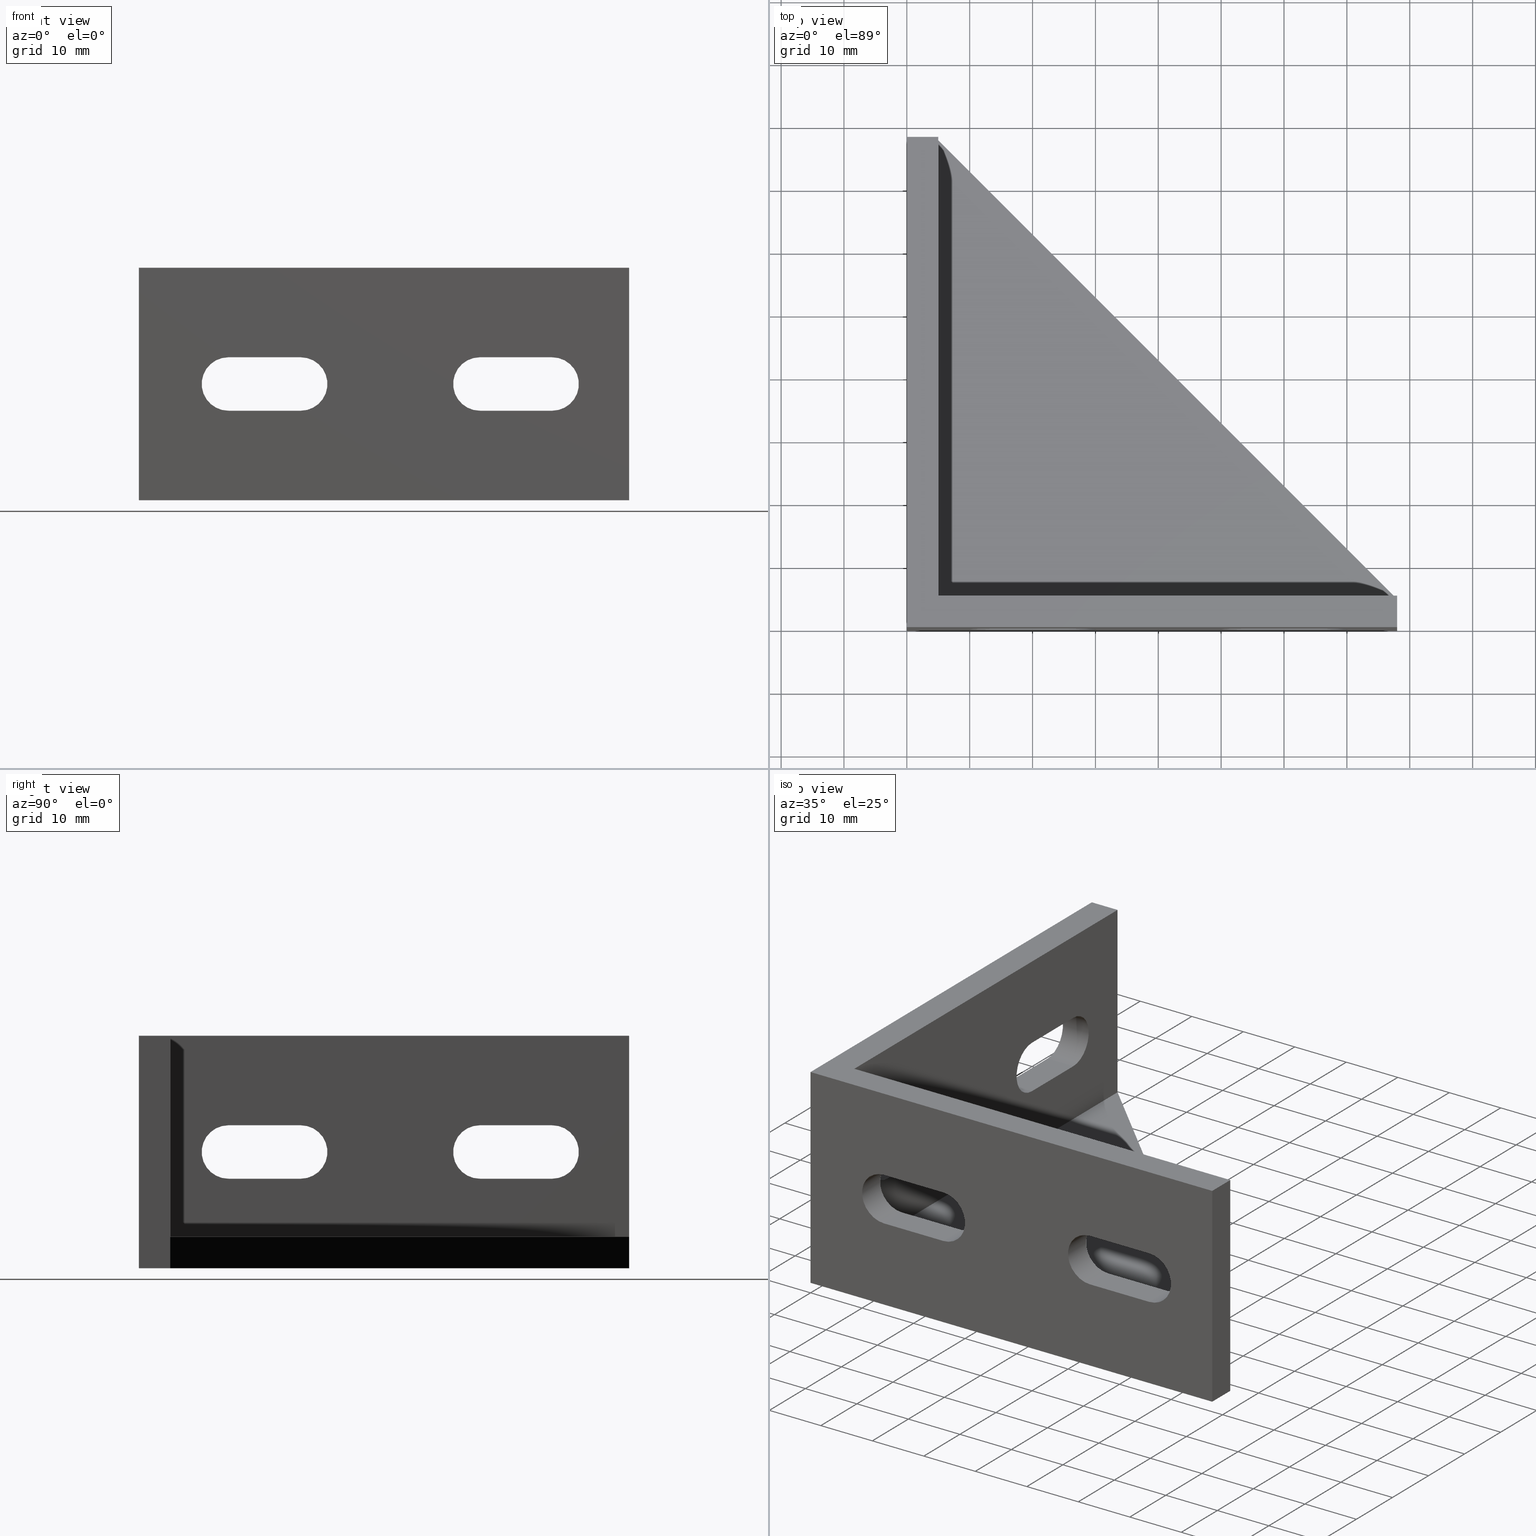
[diagram: canonical four-view strip — front | top / right | iso, engineering-drawing reading convention]
A machine part, canonical four-view strip (front | top / right | iso — engineering-drawing reading convention). The complete STEP part file that produces these views, byte-faithful:
ISO-10303-21;
HEADER;
/* Generated by software containing ST-Developer
 * from STEP Tools, Inc. (www.steptools.com) 
 */

FILE_DESCRIPTION(
/* description */ ('SQUADRETTA 37x80 '),
/* implementation_level */ '2;1');

FILE_NAME(
/* name */ 
'Q:\\Catalogo\\2_Accessori Dierre\\Per Download Web e catalogo cartace
o\\CATALOGO ELEMENTI ASSEMBLAGGIO\\PAGINA 35\\DSQAL0000059.stp',
/* time_stamp */ '2019-01-09T12:02:24+01:00',
/* author */ ('fzagni'),
/* organization */ (''),
/* preprocessor_version */ 'ST-DEVELOPER v17.2',
/* originating_system */ 'Autodesk Inventor 2019',
/* authorisation */ '');

FILE_SCHEMA (('AUTOMOTIVE_DESIGN { 1 0 10303 214 3 1 1 }'));
ENDSEC;

DATA;
#10=MECHANICAL_DESIGN_GEOMETRIC_PRESENTATION_REPRESENTATION('',(#13),#863);
#11=SHAPE_REPRESENTATION_RELATIONSHIP('SRR','None',#870,#12);
#12=ADVANCED_BREP_SHAPE_REPRESENTATION('',(#14),#862);
#13=STYLED_ITEM('',(#879),#14);
#14=MANIFOLD_SOLID_BREP('Solido1',#515);
#15=FACE_BOUND('',#86,.T.);
#16=FACE_BOUND('',#87,.T.);
#17=FACE_BOUND('',#92,.T.);
#18=FACE_BOUND('',#93,.T.);
#19=FACE_BOUND('',#95,.T.);
#20=FACE_BOUND('',#96,.T.);
#21=FACE_BOUND('',#99,.T.);
#22=FACE_BOUND('',#100,.T.);
#23=PLANE('',#538);
#24=PLANE('',#542);
#25=PLANE('',#546);
#26=PLANE('',#550);
#27=PLANE('',#554);
#28=PLANE('',#558);
#29=PLANE('',#562);
#30=PLANE('',#566);
#31=PLANE('',#567);
#32=PLANE('',#568);
#33=PLANE('',#569);
#34=PLANE('',#570);
#35=PLANE('',#571);
#36=PLANE('',#572);
#37=PLANE('',#573);
#38=PLANE('',#574);
#39=PLANE('',#575);
#40=PLANE('',#576);
#41=FACE_OUTER_BOUND('',#67,.T.);
#42=FACE_OUTER_BOUND('',#68,.T.);
#43=FACE_OUTER_BOUND('',#69,.T.);
#44=FACE_OUTER_BOUND('',#70,.T.);
#45=FACE_OUTER_BOUND('',#71,.T.);
#46=FACE_OUTER_BOUND('',#72,.T.);
#47=FACE_OUTER_BOUND('',#73,.T.);
#48=FACE_OUTER_BOUND('',#74,.T.);
#49=FACE_OUTER_BOUND('',#75,.T.);
#50=FACE_OUTER_BOUND('',#76,.T.);
#51=FACE_OUTER_BOUND('',#77,.T.);
#52=FACE_OUTER_BOUND('',#78,.T.);
#53=FACE_OUTER_BOUND('',#79,.T.);
#54=FACE_OUTER_BOUND('',#80,.T.);
#55=FACE_OUTER_BOUND('',#81,.T.);
#56=FACE_OUTER_BOUND('',#82,.T.);
#57=FACE_OUTER_BOUND('',#83,.T.);
#58=FACE_OUTER_BOUND('',#84,.T.);
#59=FACE_OUTER_BOUND('',#85,.T.);
#60=FACE_OUTER_BOUND('',#88,.T.);
#61=FACE_OUTER_BOUND('',#89,.T.);
#62=FACE_OUTER_BOUND('',#90,.T.);
#63=FACE_OUTER_BOUND('',#91,.T.);
#64=FACE_OUTER_BOUND('',#94,.T.);
#65=FACE_OUTER_BOUND('',#97,.T.);
#66=FACE_OUTER_BOUND('',#98,.T.);
#67=EDGE_LOOP('',(#341,#342,#343,#344));
#68=EDGE_LOOP('',(#345,#346,#347,#348));
#69=EDGE_LOOP('',(#349,#350,#351,#352));
#70=EDGE_LOOP('',(#353,#354,#355,#356));
#71=EDGE_LOOP('',(#357,#358,#359,#360));
#72=EDGE_LOOP('',(#361,#362,#363,#364));
#73=EDGE_LOOP('',(#365,#366,#367,#368));
#74=EDGE_LOOP('',(#369,#370,#371,#372));
#75=EDGE_LOOP('',(#373,#374,#375,#376));
#76=EDGE_LOOP('',(#377,#378,#379,#380));
#77=EDGE_LOOP('',(#381,#382,#383,#384));
#78=EDGE_LOOP('',(#385,#386,#387,#388));
#79=EDGE_LOOP('',(#389,#390,#391,#392));
#80=EDGE_LOOP('',(#393,#394,#395,#396));
#81=EDGE_LOOP('',(#397,#398,#399,#400));
#82=EDGE_LOOP('',(#401,#402,#403,#404));
#83=EDGE_LOOP('',(#405,#406,#407,#408));
#84=EDGE_LOOP('',(#409,#410,#411));
#85=EDGE_LOOP('',(#412,#413,#414,#415));
#86=EDGE_LOOP('',(#416,#417,#418,#419));
#87=EDGE_LOOP('',(#420,#421,#422,#423));
#88=EDGE_LOOP('',(#424,#425,#426,#427,#428));
#89=EDGE_LOOP('',(#429,#430,#431,#432,#433));
#90=EDGE_LOOP('',(#434,#435,#436,#437,#438,#439));
#91=EDGE_LOOP('',(#440,#441,#442,#443));
#92=EDGE_LOOP('',(#444,#445,#446,#447));
#93=EDGE_LOOP('',(#448,#449,#450,#451));
#94=EDGE_LOOP('',(#452,#453,#454,#455));
#95=EDGE_LOOP('',(#456,#457,#458,#459));
#96=EDGE_LOOP('',(#460,#461,#462,#463));
#97=EDGE_LOOP('',(#464,#465,#466,#467,#468));
#98=EDGE_LOOP('',(#469,#470,#471,#472));
#99=EDGE_LOOP('',(#473,#474,#475,#476));
#100=EDGE_LOOP('',(#477,#478,#479,#480));
#101=LINE('',#723,#155);
#102=LINE('',#726,#156);
#103=LINE('',#729,#157);
#104=LINE('',#731,#158);
#105=LINE('',#732,#159);
#106=LINE('',#738,#160);
#107=LINE('',#740,#161);
#108=LINE('',#741,#162);
#109=LINE('',#747,#163);
#110=LINE('',#750,#164);
#111=LINE('',#753,#165);
#112=LINE('',#755,#166);
#113=LINE('',#756,#167);
#114=LINE('',#762,#168);
#115=LINE('',#764,#169);
#116=LINE('',#765,#170);
#117=LINE('',#771,#171);
#118=LINE('',#774,#172);
#119=LINE('',#777,#173);
#120=LINE('',#779,#174);
#121=LINE('',#780,#175);
#122=LINE('',#786,#176);
#123=LINE('',#788,#177);
#124=LINE('',#789,#178);
#125=LINE('',#795,#179);
#126=LINE('',#798,#180);
#127=LINE('',#801,#181);
#128=LINE('',#803,#182);
#129=LINE('',#804,#183);
#130=LINE('',#810,#184);
#131=LINE('',#812,#185);
#132=LINE('',#813,#186);
#133=LINE('',#817,#187);
#134=LINE('',#819,#188);
#135=LINE('',#821,#189);
#136=LINE('',#822,#190);
#137=LINE('',#825,#191);
#138=LINE('',#826,#192);
#139=LINE('',#829,#193);
#140=LINE('',#831,#194);
#141=LINE('',#832,#195);
#142=LINE('',#836,#196);
#143=LINE('',#837,#197);
#144=LINE('',#839,#198);
#145=LINE('',#840,#199);
#146=LINE('',#843,#200);
#147=LINE('',#844,#201);
#148=LINE('',#847,#202);
#149=LINE('',#849,#203);
#150=LINE('',#851,#204);
#151=LINE('',#852,#205);
#152=LINE('',#854,#206);
#153=LINE('',#856,#207);
#154=LINE('',#858,#208);
#155=VECTOR('',#583,10.);
#156=VECTOR('',#586,10.);
#157=VECTOR('',#589,10.);
#158=VECTOR('',#590,10.);
#159=VECTOR('',#591,10.);
#160=VECTOR('',#598,10.);
#161=VECTOR('',#601,10.);
#162=VECTOR('',#602,10.);
#163=VECTOR('',#607,10.);
#164=VECTOR('',#610,10.);
#165=VECTOR('',#613,10.);
#166=VECTOR('',#614,10.);
#167=VECTOR('',#615,10.);
#168=VECTOR('',#622,10.);
#169=VECTOR('',#625,10.);
#170=VECTOR('',#626,10.);
#171=VECTOR('',#631,10.);
#172=VECTOR('',#634,10.);
#173=VECTOR('',#637,10.);
#174=VECTOR('',#638,10.);
#175=VECTOR('',#639,10.);
#176=VECTOR('',#646,10.);
#177=VECTOR('',#649,10.);
#178=VECTOR('',#650,10.);
#179=VECTOR('',#655,10.);
#180=VECTOR('',#658,10.);
#181=VECTOR('',#661,10.);
#182=VECTOR('',#662,10.);
#183=VECTOR('',#663,10.);
#184=VECTOR('',#670,10.);
#185=VECTOR('',#673,10.);
#186=VECTOR('',#674,10.);
#187=VECTOR('',#677,10.);
#188=VECTOR('',#678,10.);
#189=VECTOR('',#679,10.);
#190=VECTOR('',#680,10.);
#191=VECTOR('',#683,10.);
#192=VECTOR('',#684,10.);
#193=VECTOR('',#687,10.);
#194=VECTOR('',#688,10.);
#195=VECTOR('',#689,10.);
#196=VECTOR('',#692,10.);
#197=VECTOR('',#693,10.);
#198=VECTOR('',#694,10.);
#199=VECTOR('',#695,10.);
#200=VECTOR('',#698,10.);
#201=VECTOR('',#699,10.);
#202=VECTOR('',#702,10.);
#203=VECTOR('',#703,10.);
#204=VECTOR('',#704,10.);
#205=VECTOR('',#705,10.);
#206=VECTOR('',#708,10.);
#207=VECTOR('',#711,10.);
#208=VECTOR('',#714,10.);
#209=CIRCLE('',#536,4.25);
#210=CIRCLE('',#537,4.25);
#211=CIRCLE('',#540,4.25);
#212=CIRCLE('',#541,4.25);
#213=CIRCLE('',#544,4.25);
#214=CIRCLE('',#545,4.25);
#215=CIRCLE('',#548,4.25);
#216=CIRCLE('',#549,4.25);
#217=CIRCLE('',#552,4.25);
#218=CIRCLE('',#553,4.25);
#219=CIRCLE('',#556,4.25);
#220=CIRCLE('',#557,4.25);
#221=CIRCLE('',#560,4.25);
#222=CIRCLE('',#561,4.25);
#223=CIRCLE('',#564,4.25);
#224=CIRCLE('',#565,4.25);
#225=VERTEX_POINT('',#719);
#226=VERTEX_POINT('',#720);
#227=VERTEX_POINT('',#722);
#228=VERTEX_POINT('',#724);
#229=VERTEX_POINT('',#728);
#230=VERTEX_POINT('',#730);
#231=VERTEX_POINT('',#734);
#232=VERTEX_POINT('',#736);
#233=VERTEX_POINT('',#743);
#234=VERTEX_POINT('',#744);
#235=VERTEX_POINT('',#746);
#236=VERTEX_POINT('',#748);
#237=VERTEX_POINT('',#752);
#238=VERTEX_POINT('',#754);
#239=VERTEX_POINT('',#758);
#240=VERTEX_POINT('',#760);
#241=VERTEX_POINT('',#767);
#242=VERTEX_POINT('',#768);
#243=VERTEX_POINT('',#770);
#244=VERTEX_POINT('',#772);
#245=VERTEX_POINT('',#776);
#246=VERTEX_POINT('',#778);
#247=VERTEX_POINT('',#782);
#248=VERTEX_POINT('',#784);
#249=VERTEX_POINT('',#791);
#250=VERTEX_POINT('',#792);
#251=VERTEX_POINT('',#794);
#252=VERTEX_POINT('',#796);
#253=VERTEX_POINT('',#800);
#254=VERTEX_POINT('',#802);
#255=VERTEX_POINT('',#806);
#256=VERTEX_POINT('',#808);
#257=VERTEX_POINT('',#815);
#258=VERTEX_POINT('',#816);
#259=VERTEX_POINT('',#818);
#260=VERTEX_POINT('',#820);
#261=VERTEX_POINT('',#824);
#262=VERTEX_POINT('',#828);
#263=VERTEX_POINT('',#830);
#264=VERTEX_POINT('',#834);
#265=VERTEX_POINT('',#835);
#266=VERTEX_POINT('',#838);
#267=VERTEX_POINT('',#842);
#268=VERTEX_POINT('',#846);
#269=VERTEX_POINT('',#848);
#270=VERTEX_POINT('',#850);
#271=EDGE_CURVE('',#225,#226,#209,.T.);
#272=EDGE_CURVE('',#227,#225,#101,.T.);
#273=EDGE_CURVE('',#228,#227,#210,.T.);
#274=EDGE_CURVE('',#228,#226,#102,.T.);
#275=EDGE_CURVE('',#226,#229,#103,.T.);
#276=EDGE_CURVE('',#230,#228,#104,.T.);
#277=EDGE_CURVE('',#230,#229,#105,.T.);
#278=EDGE_CURVE('',#229,#231,#211,.T.);
#279=EDGE_CURVE('',#232,#230,#212,.T.);
#280=EDGE_CURVE('',#232,#231,#106,.T.);
#281=EDGE_CURVE('',#231,#225,#107,.T.);
#282=EDGE_CURVE('',#227,#232,#108,.T.);
#283=EDGE_CURVE('',#233,#234,#213,.T.);
#284=EDGE_CURVE('',#235,#233,#109,.T.);
#285=EDGE_CURVE('',#236,#235,#214,.T.);
#286=EDGE_CURVE('',#236,#234,#110,.T.);
#287=EDGE_CURVE('',#234,#237,#111,.T.);
#288=EDGE_CURVE('',#238,#236,#112,.T.);
#289=EDGE_CURVE('',#238,#237,#113,.T.);
#290=EDGE_CURVE('',#237,#239,#215,.T.);
#291=EDGE_CURVE('',#240,#238,#216,.T.);
#292=EDGE_CURVE('',#240,#239,#114,.T.);
#293=EDGE_CURVE('',#239,#233,#115,.T.);
#294=EDGE_CURVE('',#235,#240,#116,.T.);
#295=EDGE_CURVE('',#241,#242,#217,.T.);
#296=EDGE_CURVE('',#243,#241,#117,.T.);
#297=EDGE_CURVE('',#244,#243,#218,.T.);
#298=EDGE_CURVE('',#244,#242,#118,.T.);
#299=EDGE_CURVE('',#242,#245,#119,.T.);
#300=EDGE_CURVE('',#246,#244,#120,.T.);
#301=EDGE_CURVE('',#246,#245,#121,.T.);
#302=EDGE_CURVE('',#245,#247,#219,.T.);
#303=EDGE_CURVE('',#248,#246,#220,.T.);
#304=EDGE_CURVE('',#248,#247,#122,.T.);
#305=EDGE_CURVE('',#247,#241,#123,.T.);
#306=EDGE_CURVE('',#243,#248,#124,.T.);
#307=EDGE_CURVE('',#249,#250,#221,.T.);
#308=EDGE_CURVE('',#251,#249,#125,.T.);
#309=EDGE_CURVE('',#252,#251,#222,.T.);
#310=EDGE_CURVE('',#252,#250,#126,.T.);
#311=EDGE_CURVE('',#250,#253,#127,.T.);
#312=EDGE_CURVE('',#254,#252,#128,.T.);
#313=EDGE_CURVE('',#254,#253,#129,.T.);
#314=EDGE_CURVE('',#253,#255,#223,.T.);
#315=EDGE_CURVE('',#256,#254,#224,.T.);
#316=EDGE_CURVE('',#256,#255,#130,.T.);
#317=EDGE_CURVE('',#255,#249,#131,.T.);
#318=EDGE_CURVE('',#251,#256,#132,.T.);
#319=EDGE_CURVE('',#257,#258,#133,.T.);
#320=EDGE_CURVE('',#258,#259,#134,.T.);
#321=EDGE_CURVE('',#260,#259,#135,.T.);
#322=EDGE_CURVE('',#257,#260,#136,.T.);
#323=EDGE_CURVE('',#260,#261,#137,.T.);
#324=EDGE_CURVE('',#261,#259,#138,.T.);
#325=EDGE_CURVE('',#259,#262,#139,.T.);
#326=EDGE_CURVE('',#263,#262,#140,.T.);
#327=EDGE_CURVE('',#261,#263,#141,.T.);
#328=EDGE_CURVE('',#264,#265,#142,.T.);
#329=EDGE_CURVE('',#265,#258,#143,.T.);
#330=EDGE_CURVE('',#257,#266,#144,.T.);
#331=EDGE_CURVE('',#266,#264,#145,.T.);
#332=EDGE_CURVE('',#265,#267,#146,.T.);
#333=EDGE_CURVE('',#262,#267,#147,.T.);
#334=EDGE_CURVE('',#267,#268,#148,.T.);
#335=EDGE_CURVE('',#268,#269,#149,.T.);
#336=EDGE_CURVE('',#269,#270,#150,.T.);
#337=EDGE_CURVE('',#270,#263,#151,.T.);
#338=EDGE_CURVE('',#268,#264,#152,.T.);
#339=EDGE_CURVE('',#260,#270,#153,.T.);
#340=EDGE_CURVE('',#266,#269,#154,.T.);
#341=ORIENTED_EDGE('',*,*,#271,.F.);
#342=ORIENTED_EDGE('',*,*,#272,.F.);
#343=ORIENTED_EDGE('',*,*,#273,.F.);
#344=ORIENTED_EDGE('',*,*,#274,.T.);
#345=ORIENTED_EDGE('',*,*,#275,.F.);
#346=ORIENTED_EDGE('',*,*,#274,.F.);
#347=ORIENTED_EDGE('',*,*,#276,.F.);
#348=ORIENTED_EDGE('',*,*,#277,.T.);
#349=ORIENTED_EDGE('',*,*,#278,.F.);
#350=ORIENTED_EDGE('',*,*,#277,.F.);
#351=ORIENTED_EDGE('',*,*,#279,.F.);
#352=ORIENTED_EDGE('',*,*,#280,.T.);
#353=ORIENTED_EDGE('',*,*,#281,.F.);
#354=ORIENTED_EDGE('',*,*,#280,.F.);
#355=ORIENTED_EDGE('',*,*,#282,.F.);
#356=ORIENTED_EDGE('',*,*,#272,.T.);
#357=ORIENTED_EDGE('',*,*,#283,.F.);
#358=ORIENTED_EDGE('',*,*,#284,.F.);
#359=ORIENTED_EDGE('',*,*,#285,.F.);
#360=ORIENTED_EDGE('',*,*,#286,.T.);
#361=ORIENTED_EDGE('',*,*,#287,.F.);
#362=ORIENTED_EDGE('',*,*,#286,.F.);
#363=ORIENTED_EDGE('',*,*,#288,.F.);
#364=ORIENTED_EDGE('',*,*,#289,.T.);
#365=ORIENTED_EDGE('',*,*,#290,.F.);
#366=ORIENTED_EDGE('',*,*,#289,.F.);
#367=ORIENTED_EDGE('',*,*,#291,.F.);
#368=ORIENTED_EDGE('',*,*,#292,.T.);
#369=ORIENTED_EDGE('',*,*,#293,.F.);
#370=ORIENTED_EDGE('',*,*,#292,.F.);
#371=ORIENTED_EDGE('',*,*,#294,.F.);
#372=ORIENTED_EDGE('',*,*,#284,.T.);
#373=ORIENTED_EDGE('',*,*,#295,.F.);
#374=ORIENTED_EDGE('',*,*,#296,.F.);
#375=ORIENTED_EDGE('',*,*,#297,.F.);
#376=ORIENTED_EDGE('',*,*,#298,.T.);
#377=ORIENTED_EDGE('',*,*,#299,.F.);
#378=ORIENTED_EDGE('',*,*,#298,.F.);
#379=ORIENTED_EDGE('',*,*,#300,.F.);
#380=ORIENTED_EDGE('',*,*,#301,.T.);
#381=ORIENTED_EDGE('',*,*,#302,.F.);
#382=ORIENTED_EDGE('',*,*,#301,.F.);
#383=ORIENTED_EDGE('',*,*,#303,.F.);
#384=ORIENTED_EDGE('',*,*,#304,.T.);
#385=ORIENTED_EDGE('',*,*,#305,.F.);
#386=ORIENTED_EDGE('',*,*,#304,.F.);
#387=ORIENTED_EDGE('',*,*,#306,.F.);
#388=ORIENTED_EDGE('',*,*,#296,.T.);
#389=ORIENTED_EDGE('',*,*,#307,.F.);
#390=ORIENTED_EDGE('',*,*,#308,.F.);
#391=ORIENTED_EDGE('',*,*,#309,.F.);
#392=ORIENTED_EDGE('',*,*,#310,.T.);
#393=ORIENTED_EDGE('',*,*,#311,.F.);
#394=ORIENTED_EDGE('',*,*,#310,.F.);
#395=ORIENTED_EDGE('',*,*,#312,.F.);
#396=ORIENTED_EDGE('',*,*,#313,.T.);
#397=ORIENTED_EDGE('',*,*,#314,.F.);
#398=ORIENTED_EDGE('',*,*,#313,.F.);
#399=ORIENTED_EDGE('',*,*,#315,.F.);
#400=ORIENTED_EDGE('',*,*,#316,.T.);
#401=ORIENTED_EDGE('',*,*,#317,.F.);
#402=ORIENTED_EDGE('',*,*,#316,.F.);
#403=ORIENTED_EDGE('',*,*,#318,.F.);
#404=ORIENTED_EDGE('',*,*,#308,.T.);
#405=ORIENTED_EDGE('',*,*,#319,.T.);
#406=ORIENTED_EDGE('',*,*,#320,.T.);
#407=ORIENTED_EDGE('',*,*,#321,.F.);
#408=ORIENTED_EDGE('',*,*,#322,.F.);
#409=ORIENTED_EDGE('',*,*,#323,.F.);
#410=ORIENTED_EDGE('',*,*,#321,.T.);
#411=ORIENTED_EDGE('',*,*,#324,.F.);
#412=ORIENTED_EDGE('',*,*,#324,.T.);
#413=ORIENTED_EDGE('',*,*,#325,.T.);
#414=ORIENTED_EDGE('',*,*,#326,.F.);
#415=ORIENTED_EDGE('',*,*,#327,.F.);
#416=ORIENTED_EDGE('',*,*,#302,.T.);
#417=ORIENTED_EDGE('',*,*,#305,.T.);
#418=ORIENTED_EDGE('',*,*,#295,.T.);
#419=ORIENTED_EDGE('',*,*,#299,.T.);
#420=ORIENTED_EDGE('',*,*,#314,.T.);
#421=ORIENTED_EDGE('',*,*,#317,.T.);
#422=ORIENTED_EDGE('',*,*,#307,.T.);
#423=ORIENTED_EDGE('',*,*,#311,.T.);
#424=ORIENTED_EDGE('',*,*,#328,.T.);
#425=ORIENTED_EDGE('',*,*,#329,.T.);
#426=ORIENTED_EDGE('',*,*,#319,.F.);
#427=ORIENTED_EDGE('',*,*,#330,.T.);
#428=ORIENTED_EDGE('',*,*,#331,.T.);
#429=ORIENTED_EDGE('',*,*,#332,.T.);
#430=ORIENTED_EDGE('',*,*,#333,.F.);
#431=ORIENTED_EDGE('',*,*,#325,.F.);
#432=ORIENTED_EDGE('',*,*,#320,.F.);
#433=ORIENTED_EDGE('',*,*,#329,.F.);
#434=ORIENTED_EDGE('',*,*,#326,.T.);
#435=ORIENTED_EDGE('',*,*,#333,.T.);
#436=ORIENTED_EDGE('',*,*,#334,.T.);
#437=ORIENTED_EDGE('',*,*,#335,.T.);
#438=ORIENTED_EDGE('',*,*,#336,.T.);
#439=ORIENTED_EDGE('',*,*,#337,.T.);
#440=ORIENTED_EDGE('',*,*,#338,.F.);
#441=ORIENTED_EDGE('',*,*,#334,.F.);
#442=ORIENTED_EDGE('',*,*,#332,.F.);
#443=ORIENTED_EDGE('',*,*,#328,.F.);
#444=ORIENTED_EDGE('',*,*,#303,.T.);
#445=ORIENTED_EDGE('',*,*,#300,.T.);
#446=ORIENTED_EDGE('',*,*,#297,.T.);
#447=ORIENTED_EDGE('',*,*,#306,.T.);
#448=ORIENTED_EDGE('',*,*,#315,.T.);
#449=ORIENTED_EDGE('',*,*,#312,.T.);
#450=ORIENTED_EDGE('',*,*,#309,.T.);
#451=ORIENTED_EDGE('',*,*,#318,.T.);
#452=ORIENTED_EDGE('',*,*,#323,.T.);
#453=ORIENTED_EDGE('',*,*,#327,.T.);
#454=ORIENTED_EDGE('',*,*,#337,.F.);
#455=ORIENTED_EDGE('',*,*,#339,.F.);
#456=ORIENTED_EDGE('',*,*,#278,.T.);
#457=ORIENTED_EDGE('',*,*,#281,.T.);
#458=ORIENTED_EDGE('',*,*,#271,.T.);
#459=ORIENTED_EDGE('',*,*,#275,.T.);
#460=ORIENTED_EDGE('',*,*,#290,.T.);
#461=ORIENTED_EDGE('',*,*,#293,.T.);
#462=ORIENTED_EDGE('',*,*,#283,.T.);
#463=ORIENTED_EDGE('',*,*,#287,.T.);
#464=ORIENTED_EDGE('',*,*,#322,.T.);
#465=ORIENTED_EDGE('',*,*,#339,.T.);
#466=ORIENTED_EDGE('',*,*,#336,.F.);
#467=ORIENTED_EDGE('',*,*,#340,.F.);
#468=ORIENTED_EDGE('',*,*,#330,.F.);
#469=ORIENTED_EDGE('',*,*,#335,.F.);
#470=ORIENTED_EDGE('',*,*,#338,.T.);
#471=ORIENTED_EDGE('',*,*,#331,.F.);
#472=ORIENTED_EDGE('',*,*,#340,.T.);
#473=ORIENTED_EDGE('',*,*,#279,.T.);
#474=ORIENTED_EDGE('',*,*,#276,.T.);
#475=ORIENTED_EDGE('',*,*,#273,.T.);
#476=ORIENTED_EDGE('',*,*,#282,.T.);
#477=ORIENTED_EDGE('',*,*,#291,.T.);
#478=ORIENTED_EDGE('',*,*,#288,.T.);
#479=ORIENTED_EDGE('',*,*,#285,.T.);
#480=ORIENTED_EDGE('',*,*,#294,.T.);
#481=CYLINDRICAL_SURFACE('',#535,4.25);
#482=CYLINDRICAL_SURFACE('',#539,4.25);
#483=CYLINDRICAL_SURFACE('',#543,4.25);
#484=CYLINDRICAL_SURFACE('',#547,4.25);
#485=CYLINDRICAL_SURFACE('',#551,4.25);
#486=CYLINDRICAL_SURFACE('',#555,4.25);
#487=CYLINDRICAL_SURFACE('',#559,4.25);
#488=CYLINDRICAL_SURFACE('',#563,4.25);
#489=ADVANCED_FACE('',(#41),#481,.F.);
#490=ADVANCED_FACE('',(#42),#23,.F.);
#491=ADVANCED_FACE('',(#43),#482,.F.);
#492=ADVANCED_FACE('',(#44),#24,.F.);
#493=ADVANCED_FACE('',(#45),#483,.F.);
#494=ADVANCED_FACE('',(#46),#25,.F.);
#495=ADVANCED_FACE('',(#47),#484,.F.);
#496=ADVANCED_FACE('',(#48),#26,.F.);
#497=ADVANCED_FACE('',(#49),#485,.F.);
#498=ADVANCED_FACE('',(#50),#27,.F.);
#499=ADVANCED_FACE('',(#51),#486,.F.);
#500=ADVANCED_FACE('',(#52),#28,.F.);
#501=ADVANCED_FACE('',(#53),#487,.F.);
#502=ADVANCED_FACE('',(#54),#29,.F.);
#503=ADVANCED_FACE('',(#55),#488,.F.);
#504=ADVANCED_FACE('',(#56),#30,.F.);
#505=ADVANCED_FACE('',(#57),#31,.T.);
#506=ADVANCED_FACE('',(#58),#32,.T.);
#507=ADVANCED_FACE('',(#59,#15,#16),#33,.T.);
#508=ADVANCED_FACE('',(#60),#34,.T.);
#509=ADVANCED_FACE('',(#61),#35,.T.);
#510=ADVANCED_FACE('',(#62),#36,.T.);
#511=ADVANCED_FACE('',(#63,#17,#18),#37,.T.);
#512=ADVANCED_FACE('',(#64,#19,#20),#38,.T.);
#513=ADVANCED_FACE('',(#65),#39,.T.);
#514=ADVANCED_FACE('',(#66,#21,#22),#40,.T.);
#515=CLOSED_SHELL('',(#489,#490,#491,#492,#493,#494,#495,#496,#497,#498,
#499,#500,#501,#502,#503,#504,#505,#506,#507,#508,#509,#510,#511,#512,#513,
#514));
#516=DERIVED_UNIT_ELEMENT(#518,1.);
#517=DERIVED_UNIT_ELEMENT(#865,3.);
#518=(
MASS_UNIT()
NAMED_UNIT(*)
SI_UNIT($,.GRAM.)
);
#519=DERIVED_UNIT((#516,#517));
#520=MEASURE_REPRESENTATION_ITEM('density measure',
POSITIVE_RATIO_MEASURE(2.67),#519);
#521=PROPERTY_DEFINITION_REPRESENTATION(#526,#523);
#522=PROPERTY_DEFINITION_REPRESENTATION(#527,#524);
#523=REPRESENTATION('material name',(#525),#862);
#524=REPRESENTATION('density',(#520),#862);
#525=DESCRIPTIVE_REPRESENTATION_ITEM('Alluminio pressofuso',
'Alluminio pressofuso');
#526=PROPERTY_DEFINITION('material property','material name',#872);
#527=PROPERTY_DEFINITION('material property','density of part',#872);
#528=DATE_TIME_ROLE('creation_date');
#529=APPLIED_DATE_AND_TIME_ASSIGNMENT(#530,#528,(#872));
#530=DATE_AND_TIME(#531,#532);
#531=CALENDAR_DATE(2017,8,9);
#532=LOCAL_TIME(13,15,55.,#533);
#533=COORDINATED_UNIVERSAL_TIME_OFFSET(0,0,.BEHIND.);
#534=AXIS2_PLACEMENT_3D('placement',#717,#577,#578);
#535=AXIS2_PLACEMENT_3D('',#718,#579,#580);
#536=AXIS2_PLACEMENT_3D('',#721,#581,#582);
#537=AXIS2_PLACEMENT_3D('',#725,#584,#585);
#538=AXIS2_PLACEMENT_3D('',#727,#587,#588);
#539=AXIS2_PLACEMENT_3D('',#733,#592,#593);
#540=AXIS2_PLACEMENT_3D('',#735,#594,#595);
#541=AXIS2_PLACEMENT_3D('',#737,#596,#597);
#542=AXIS2_PLACEMENT_3D('',#739,#599,#600);
#543=AXIS2_PLACEMENT_3D('',#742,#603,#604);
#544=AXIS2_PLACEMENT_3D('',#745,#605,#606);
#545=AXIS2_PLACEMENT_3D('',#749,#608,#609);
#546=AXIS2_PLACEMENT_3D('',#751,#611,#612);
#547=AXIS2_PLACEMENT_3D('',#757,#616,#617);
#548=AXIS2_PLACEMENT_3D('',#759,#618,#619);
#549=AXIS2_PLACEMENT_3D('',#761,#620,#621);
#550=AXIS2_PLACEMENT_3D('',#763,#623,#624);
#551=AXIS2_PLACEMENT_3D('',#766,#627,#628);
#552=AXIS2_PLACEMENT_3D('',#769,#629,#630);
#553=AXIS2_PLACEMENT_3D('',#773,#632,#633);
#554=AXIS2_PLACEMENT_3D('',#775,#635,#636);
#555=AXIS2_PLACEMENT_3D('',#781,#640,#641);
#556=AXIS2_PLACEMENT_3D('',#783,#642,#643);
#557=AXIS2_PLACEMENT_3D('',#785,#644,#645);
#558=AXIS2_PLACEMENT_3D('',#787,#647,#648);
#559=AXIS2_PLACEMENT_3D('',#790,#651,#652);
#560=AXIS2_PLACEMENT_3D('',#793,#653,#654);
#561=AXIS2_PLACEMENT_3D('',#797,#656,#657);
#562=AXIS2_PLACEMENT_3D('',#799,#659,#660);
#563=AXIS2_PLACEMENT_3D('',#805,#664,#665);
#564=AXIS2_PLACEMENT_3D('',#807,#666,#667);
#565=AXIS2_PLACEMENT_3D('',#809,#668,#669);
#566=AXIS2_PLACEMENT_3D('',#811,#671,#672);
#567=AXIS2_PLACEMENT_3D('',#814,#675,#676);
#568=AXIS2_PLACEMENT_3D('',#823,#681,#682);
#569=AXIS2_PLACEMENT_3D('',#827,#685,#686);
#570=AXIS2_PLACEMENT_3D('',#833,#690,#691);
#571=AXIS2_PLACEMENT_3D('',#841,#696,#697);
#572=AXIS2_PLACEMENT_3D('',#845,#700,#701);
#573=AXIS2_PLACEMENT_3D('',#853,#706,#707);
#574=AXIS2_PLACEMENT_3D('',#855,#709,#710);
#575=AXIS2_PLACEMENT_3D('',#857,#712,#713);
#576=AXIS2_PLACEMENT_3D('',#859,#715,#716);
#577=DIRECTION('axis',(0.,0.,1.));
#578=DIRECTION('refdir',(1.,0.,0.));
#579=DIRECTION('center_axis',(0.,1.,0.));
#580=DIRECTION('ref_axis',(0.,0.,1.));
#581=DIRECTION('center_axis',(0.,-1.,0.));
#582=DIRECTION('ref_axis',(0.,0.,1.));
#583=DIRECTION('',(0.,1.,0.));
#584=DIRECTION('center_axis',(0.,1.,0.));
#585=DIRECTION('ref_axis',(0.,0.,1.));
#586=DIRECTION('',(0.,1.,0.));
#587=DIRECTION('center_axis',(0.,0.,-1.));
#588=DIRECTION('ref_axis',(-1.,0.,0.));
#589=DIRECTION('',(1.,0.,0.));
#590=DIRECTION('',(-1.,0.,0.));
#591=DIRECTION('',(0.,1.,0.));
#592=DIRECTION('center_axis',(0.,1.,0.));
#593=DIRECTION('ref_axis',(0.,0.,-1.));
#594=DIRECTION('center_axis',(0.,-1.,0.));
#595=DIRECTION('ref_axis',(0.,0.,-1.));
#596=DIRECTION('center_axis',(0.,1.,0.));
#597=DIRECTION('ref_axis',(0.,0.,-1.));
#598=DIRECTION('',(0.,1.,0.));
#599=DIRECTION('center_axis',(-1.93082265152201E-16,0.,1.));
#600=DIRECTION('ref_axis',(1.,0.,1.93082265152201E-16));
#601=DIRECTION('',(-1.,0.,-1.93082265152201E-16));
#602=DIRECTION('',(1.,0.,1.93082265152201E-16));
#603=DIRECTION('center_axis',(0.,1.,0.));
#604=DIRECTION('ref_axis',(0.,0.,1.));
#605=DIRECTION('center_axis',(0.,-1.,0.));
#606=DIRECTION('ref_axis',(0.,0.,1.));
#607=DIRECTION('',(0.,1.,0.));
#608=DIRECTION('center_axis',(0.,1.,0.));
#609=DIRECTION('ref_axis',(0.,0.,1.));
#610=DIRECTION('',(0.,1.,0.));
#611=DIRECTION('center_axis',(0.,0.,-1.));
#612=DIRECTION('ref_axis',(-1.,0.,0.));
#613=DIRECTION('',(1.,0.,0.));
#614=DIRECTION('',(-1.,0.,0.));
#615=DIRECTION('',(0.,1.,0.));
#616=DIRECTION('center_axis',(0.,1.,0.));
#617=DIRECTION('ref_axis',(0.,0.,-1.));
#618=DIRECTION('center_axis',(0.,-1.,0.));
#619=DIRECTION('ref_axis',(0.,0.,-1.));
#620=DIRECTION('center_axis',(0.,1.,0.));
#621=DIRECTION('ref_axis',(0.,0.,-1.));
#622=DIRECTION('',(0.,1.,0.));
#623=DIRECTION('center_axis',(1.93082265152201E-16,0.,1.));
#624=DIRECTION('ref_axis',(1.,0.,-1.93082265152201E-16));
#625=DIRECTION('',(-1.,0.,1.93082265152201E-16));
#626=DIRECTION('',(1.,0.,-1.93082265152201E-16));
#627=DIRECTION('center_axis',(1.,0.,0.));
#628=DIRECTION('ref_axis',(0.,0.,1.));
#629=DIRECTION('center_axis',(-1.,0.,0.));
#630=DIRECTION('ref_axis',(0.,0.,1.));
#631=DIRECTION('',(1.,0.,0.));
#632=DIRECTION('center_axis',(1.,0.,0.));
#633=DIRECTION('ref_axis',(0.,0.,1.));
#634=DIRECTION('',(1.,0.,0.));
#635=DIRECTION('center_axis',(0.,0.,-1.));
#636=DIRECTION('ref_axis',(0.,1.,0.));
#637=DIRECTION('',(0.,-1.,0.));
#638=DIRECTION('',(0.,1.,0.));
#639=DIRECTION('',(1.,0.,0.));
#640=DIRECTION('center_axis',(1.,0.,0.));
#641=DIRECTION('ref_axis',(0.,0.,-1.));
#642=DIRECTION('center_axis',(-1.,0.,0.));
#643=DIRECTION('ref_axis',(0.,0.,-1.));
#644=DIRECTION('center_axis',(1.,0.,0.));
#645=DIRECTION('ref_axis',(0.,0.,-1.));
#646=DIRECTION('',(1.,0.,0.));
#647=DIRECTION('center_axis',(0.,0.,1.));
#648=DIRECTION('ref_axis',(0.,-1.,0.));
#649=DIRECTION('',(0.,1.,0.));
#650=DIRECTION('',(0.,-1.,0.));
#651=DIRECTION('center_axis',(1.,0.,0.));
#652=DIRECTION('ref_axis',(0.,0.,1.));
#653=DIRECTION('center_axis',(-1.,0.,0.));
#654=DIRECTION('ref_axis',(0.,0.,1.));
#655=DIRECTION('',(1.,0.,0.));
#656=DIRECTION('center_axis',(1.,0.,0.));
#657=DIRECTION('ref_axis',(0.,0.,1.));
#658=DIRECTION('',(1.,0.,0.));
#659=DIRECTION('center_axis',(0.,0.,-1.));
#660=DIRECTION('ref_axis',(0.,1.,0.));
#661=DIRECTION('',(0.,-1.,0.));
#662=DIRECTION('',(0.,1.,0.));
#663=DIRECTION('',(1.,0.,0.));
#664=DIRECTION('center_axis',(1.,0.,0.));
#665=DIRECTION('ref_axis',(0.,0.,-1.));
#666=DIRECTION('center_axis',(-1.,0.,0.));
#667=DIRECTION('ref_axis',(0.,0.,-1.));
#668=DIRECTION('center_axis',(1.,0.,0.));
#669=DIRECTION('ref_axis',(0.,0.,-1.));
#670=DIRECTION('',(1.,0.,0.));
#671=DIRECTION('center_axis',(0.,-1.93082265152201E-16,1.));
#672=DIRECTION('ref_axis',(0.,-1.,-1.93082265152201E-16));
#673=DIRECTION('',(0.,1.,1.93082265152201E-16));
#674=DIRECTION('',(0.,-1.,-1.93082265152201E-16));
#675=DIRECTION('center_axis',(0.707106781186548,0.707106781186548,0.));
#676=DIRECTION('ref_axis',(-0.707106781186548,0.707106781186548,0.));
#677=DIRECTION('',(-0.707106781186548,0.707106781186548,0.));
#678=DIRECTION('',(0.,0.,1.));
#679=DIRECTION('',(-0.707106781186548,0.707106781186548,0.));
#680=DIRECTION('',(0.,0.,1.));
#681=DIRECTION('center_axis',(0.,0.,1.));
#682=DIRECTION('ref_axis',(1.,0.,0.));
#683=DIRECTION('',(-1.,0.,0.));
#684=DIRECTION('',(0.,1.,0.));
#685=DIRECTION('center_axis',(1.,0.,0.));
#686=DIRECTION('ref_axis',(0.,1.,0.));
#687=DIRECTION('',(0.,0.,1.));
#688=DIRECTION('',(0.,1.,0.));
#689=DIRECTION('',(0.,0.,1.));
#690=DIRECTION('center_axis',(0.,0.,-1.));
#691=DIRECTION('ref_axis',(-1.,0.,0.));
#692=DIRECTION('',(0.,1.,0.));
#693=DIRECTION('',(1.,0.,0.));
#694=DIRECTION('',(0.,-1.,0.));
#695=DIRECTION('',(-1.,0.,0.));
#696=DIRECTION('center_axis',(0.,1.,0.));
#697=DIRECTION('ref_axis',(-1.,0.,0.));
#698=DIRECTION('',(0.,0.,1.));
#699=DIRECTION('',(-1.,0.,0.));
#700=DIRECTION('center_axis',(0.,0.,1.));
#701=DIRECTION('ref_axis',(1.,0.,0.));
#702=DIRECTION('',(0.,-1.,0.));
#703=DIRECTION('',(1.,0.,0.));
#704=DIRECTION('',(0.,1.,0.));
#705=DIRECTION('',(-1.,0.,0.));
#706=DIRECTION('center_axis',(-1.,0.,0.));
#707=DIRECTION('ref_axis',(0.,-1.,0.));
#708=DIRECTION('',(0.,0.,-1.));
#709=DIRECTION('center_axis',(0.,1.,0.));
#710=DIRECTION('ref_axis',(-1.,0.,0.));
#711=DIRECTION('',(0.,0.,1.));
#712=DIRECTION('center_axis',(1.,0.,0.));
#713=DIRECTION('ref_axis',(0.,1.,0.));
#714=DIRECTION('',(0.,0.,1.));
#715=DIRECTION('center_axis',(0.,-1.,0.));
#716=DIRECTION('ref_axis',(1.,0.,0.));
#717=CARTESIAN_POINT('',(0.,0.,0.));
#718=CARTESIAN_POINT('Origin',(14.25,0.,0.));
#719=CARTESIAN_POINT('',(14.25,5.,4.25));
#720=CARTESIAN_POINT('',(14.25,5.,-4.25));
#721=CARTESIAN_POINT('Origin',(14.25,5.,0.));
#722=CARTESIAN_POINT('',(14.25,0.,4.25));
#723=CARTESIAN_POINT('',(14.25,0.,4.25));
#724=CARTESIAN_POINT('',(14.25,0.,-4.25));
#725=CARTESIAN_POINT('Origin',(14.25,0.,0.));
#726=CARTESIAN_POINT('',(14.25,0.,-4.25));
#727=CARTESIAN_POINT('Origin',(25.75,0.,-4.25));
#728=CARTESIAN_POINT('',(25.75,5.,-4.25));
#729=CARTESIAN_POINT('',(51.875,5.,-4.25));
#730=CARTESIAN_POINT('',(25.75,0.,-4.25));
#731=CARTESIAN_POINT('',(12.875,0.,-4.25));
#732=CARTESIAN_POINT('',(25.75,0.,-4.25));
#733=CARTESIAN_POINT('Origin',(25.75,0.,0.));
#734=CARTESIAN_POINT('',(25.75,5.,4.25));
#735=CARTESIAN_POINT('Origin',(25.75,5.,0.));
#736=CARTESIAN_POINT('',(25.75,0.,4.25));
#737=CARTESIAN_POINT('Origin',(25.75,0.,0.));
#738=CARTESIAN_POINT('',(25.75,0.,4.25));
#739=CARTESIAN_POINT('Origin',(14.25,0.,4.25));
#740=CARTESIAN_POINT('',(46.125,5.,4.25));
#741=CARTESIAN_POINT('',(7.125,0.,4.25));
#742=CARTESIAN_POINT('Origin',(54.25,0.,0.));
#743=CARTESIAN_POINT('',(54.25,5.,4.25));
#744=CARTESIAN_POINT('',(54.25,5.,-4.25));
#745=CARTESIAN_POINT('Origin',(54.25,5.,0.));
#746=CARTESIAN_POINT('',(54.25,0.,4.25));
#747=CARTESIAN_POINT('',(54.25,0.,4.25));
#748=CARTESIAN_POINT('',(54.25,0.,-4.25));
#749=CARTESIAN_POINT('Origin',(54.25,0.,0.));
#750=CARTESIAN_POINT('',(54.25,0.,-4.25));
#751=CARTESIAN_POINT('Origin',(65.75,0.,-4.25));
#752=CARTESIAN_POINT('',(65.75,5.,-4.25));
#753=CARTESIAN_POINT('',(71.875,5.,-4.25));
#754=CARTESIAN_POINT('',(65.75,0.,-4.25));
#755=CARTESIAN_POINT('',(32.875,0.,-4.25));
#756=CARTESIAN_POINT('',(65.75,0.,-4.25));
#757=CARTESIAN_POINT('Origin',(65.75,0.,0.));
#758=CARTESIAN_POINT('',(65.75,5.,4.25));
#759=CARTESIAN_POINT('Origin',(65.75,5.,0.));
#760=CARTESIAN_POINT('',(65.75,0.,4.25));
#761=CARTESIAN_POINT('Origin',(65.75,0.,0.));
#762=CARTESIAN_POINT('',(65.75,0.,4.25));
#763=CARTESIAN_POINT('Origin',(54.25,0.,4.25));
#764=CARTESIAN_POINT('',(66.125,5.,4.25));
#765=CARTESIAN_POINT('',(27.125,0.,4.25000000000001));
#766=CARTESIAN_POINT('Origin',(0.,65.75,0.));
#767=CARTESIAN_POINT('',(5.,65.75,4.25));
#768=CARTESIAN_POINT('',(5.,65.75,-4.25));
#769=CARTESIAN_POINT('Origin',(5.,65.75,0.));
#770=CARTESIAN_POINT('',(0.,65.75,4.25));
#771=CARTESIAN_POINT('',(0.,65.75,4.25));
#772=CARTESIAN_POINT('',(0.,65.75,-4.25));
#773=CARTESIAN_POINT('Origin',(0.,65.75,0.));
#774=CARTESIAN_POINT('',(0.,65.75,-4.25));
#775=CARTESIAN_POINT('Origin',(0.,54.25,-4.25));
#776=CARTESIAN_POINT('',(5.,54.25,-4.25));
#777=CARTESIAN_POINT('',(5.,27.125,-4.25));
#778=CARTESIAN_POINT('',(0.,54.25,-4.25));
#779=CARTESIAN_POINT('',(0.,29.625,-4.25));
#780=CARTESIAN_POINT('',(0.,54.25,-4.25));
#781=CARTESIAN_POINT('Origin',(0.,54.25,0.));
#782=CARTESIAN_POINT('',(5.,54.25,4.25));
#783=CARTESIAN_POINT('Origin',(5.,54.25,0.));
#784=CARTESIAN_POINT('',(0.,54.25,4.25));
#785=CARTESIAN_POINT('Origin',(0.,54.25,0.));
#786=CARTESIAN_POINT('',(0.,54.25,4.25));
#787=CARTESIAN_POINT('Origin',(0.,65.75,4.25));
#788=CARTESIAN_POINT('',(5.,32.875,4.25));
#789=CARTESIAN_POINT('',(0.,35.375,4.25));
#790=CARTESIAN_POINT('Origin',(0.,25.75,4.44089209850063E-15));
#791=CARTESIAN_POINT('',(5.,25.75,4.25000000000001));
#792=CARTESIAN_POINT('',(5.,25.75,-4.24999999999999));
#793=CARTESIAN_POINT('Origin',(5.,25.75,4.44089209850063E-15));
#794=CARTESIAN_POINT('',(0.,25.75,4.25000000000001));
#795=CARTESIAN_POINT('',(0.,25.75,4.25000000000001));
#796=CARTESIAN_POINT('',(0.,25.75,-4.24999999999999));
#797=CARTESIAN_POINT('Origin',(0.,25.75,4.44089209850063E-15));
#798=CARTESIAN_POINT('',(0.,25.75,-4.24999999999999));
#799=CARTESIAN_POINT('Origin',(0.,14.25,-4.24999999999999));
#800=CARTESIAN_POINT('',(5.,14.25,-4.24999999999999));
#801=CARTESIAN_POINT('',(5.,7.125,-4.24999999999999));
#802=CARTESIAN_POINT('',(0.,14.25,-4.24999999999999));
#803=CARTESIAN_POINT('',(0.,9.625,-4.24999999999999));
#804=CARTESIAN_POINT('',(0.,14.25,-4.24999999999999));
#805=CARTESIAN_POINT('Origin',(0.,14.25,4.44089209850063E-15));
#806=CARTESIAN_POINT('',(5.,14.25,4.25000000000001));
#807=CARTESIAN_POINT('Origin',(5.,14.25,4.44089209850063E-15));
#808=CARTESIAN_POINT('',(0.,14.25,4.25000000000001));
#809=CARTESIAN_POINT('Origin',(0.,14.25,4.44089209850063E-15));
#810=CARTESIAN_POINT('',(0.,14.25,4.25000000000001));
#811=CARTESIAN_POINT('Origin',(0.,25.75,4.25000000000001));
#812=CARTESIAN_POINT('',(5.,12.875,4.25000000000001));
#813=CARTESIAN_POINT('',(0.,15.375,4.25000000000001));
#814=CARTESIAN_POINT('Origin',(78.,5.,-18.5));
#815=CARTESIAN_POINT('',(78.,5.,-18.5));
#816=CARTESIAN_POINT('',(5.,78.,-18.5));
#817=CARTESIAN_POINT('',(78.,5.,-18.5));
#818=CARTESIAN_POINT('',(5.,78.,-13.5));
#819=CARTESIAN_POINT('',(5.,78.,0.));
#820=CARTESIAN_POINT('',(78.,5.,-13.5));
#821=CARTESIAN_POINT('',(78.,5.,-13.5));
#822=CARTESIAN_POINT('',(78.,5.,0.));
#823=CARTESIAN_POINT('Origin',(30.809397513309,30.809397513309,-13.5));
#824=CARTESIAN_POINT('',(5.,5.,-13.5));
#825=CARTESIAN_POINT('',(54.4046987566545,5.,-13.5));
#826=CARTESIAN_POINT('',(5.,15.4046987566545,-13.5));
#827=CARTESIAN_POINT('Origin',(5.,0.,0.));
#828=CARTESIAN_POINT('',(5.,78.,18.5));
#829=CARTESIAN_POINT('',(5.,78.,0.));
#830=CARTESIAN_POINT('',(5.,5.,18.5));
#831=CARTESIAN_POINT('',(5.,0.,18.5));
#832=CARTESIAN_POINT('',(5.,5.,0.));
#833=CARTESIAN_POINT('Origin',(2.5,39.,-18.5));
#834=CARTESIAN_POINT('',(0.,0.,-18.5));
#835=CARTESIAN_POINT('',(0.,78.,-18.5));
#836=CARTESIAN_POINT('',(0.,5.,-18.5));
#837=CARTESIAN_POINT('',(5.,78.,-18.5));
#838=CARTESIAN_POINT('',(78.,0.,-18.5));
#839=CARTESIAN_POINT('',(78.,0.,-18.5));
#840=CARTESIAN_POINT('',(0.,0.,-18.5));
#841=CARTESIAN_POINT('Origin',(5.,78.,0.));
#842=CARTESIAN_POINT('',(0.,78.,18.5));
#843=CARTESIAN_POINT('',(0.,78.,0.));
#844=CARTESIAN_POINT('',(5.,78.,18.5));
#845=CARTESIAN_POINT('Origin',(2.5,39.,18.5));
#846=CARTESIAN_POINT('',(0.,0.,18.5));
#847=CARTESIAN_POINT('',(0.,78.,18.5));
#848=CARTESIAN_POINT('',(78.,0.,18.5));
#849=CARTESIAN_POINT('',(0.,0.,18.5));
#850=CARTESIAN_POINT('',(78.,5.,18.5));
#851=CARTESIAN_POINT('',(78.,0.,18.5));
#852=CARTESIAN_POINT('',(78.,5.,18.5));
#853=CARTESIAN_POINT('Origin',(0.,5.,0.));
#854=CARTESIAN_POINT('',(0.,0.,0.));
#855=CARTESIAN_POINT('Origin',(78.,5.,0.));
#856=CARTESIAN_POINT('',(78.,5.,0.));
#857=CARTESIAN_POINT('Origin',(78.,0.,0.));
#858=CARTESIAN_POINT('',(78.,0.,0.));
#859=CARTESIAN_POINT('Origin',(0.,0.,0.));
#860=UNCERTAINTY_MEASURE_WITH_UNIT(LENGTH_MEASURE(0.01),#864,
'DISTANCE_ACCURACY_VALUE',
'Maximum model space distance between geometric entities at asserted c
onnectivities');
#861=UNCERTAINTY_MEASURE_WITH_UNIT(LENGTH_MEASURE(0.01),#864,
'DISTANCE_ACCURACY_VALUE',
'Maximum model space distance between geometric entities at asserted c
onnectivities');
#862=(
GEOMETRIC_REPRESENTATION_CONTEXT(3)
GLOBAL_UNCERTAINTY_ASSIGNED_CONTEXT((#860))
GLOBAL_UNIT_ASSIGNED_CONTEXT((#864,#866,#867))
REPRESENTATION_CONTEXT('','3D')
);
#863=(
GEOMETRIC_REPRESENTATION_CONTEXT(3)
GLOBAL_UNCERTAINTY_ASSIGNED_CONTEXT((#861))
GLOBAL_UNIT_ASSIGNED_CONTEXT((#864,#866,#867))
REPRESENTATION_CONTEXT('','3D')
);
#864=(
LENGTH_UNIT()
NAMED_UNIT(*)
SI_UNIT(.MILLI.,.METRE.)
);
#865=(
LENGTH_UNIT()
NAMED_UNIT(*)
SI_UNIT(.CENTI.,.METRE.)
);
#866=(
NAMED_UNIT(*)
PLANE_ANGLE_UNIT()
SI_UNIT($,.RADIAN.)
);
#867=(
NAMED_UNIT(*)
SI_UNIT($,.STERADIAN.)
SOLID_ANGLE_UNIT()
);
#868=SHAPE_DEFINITION_REPRESENTATION(#869,#870);
#869=PRODUCT_DEFINITION_SHAPE('',$,#872);
#870=SHAPE_REPRESENTATION('',(#534),#862);
#871=PRODUCT_DEFINITION_CONTEXT('part definition',#876,'design');
#872=PRODUCT_DEFINITION('DSQAL0000059','DSQAL0000059',#873,#871);
#873=PRODUCT_DEFINITION_FORMATION('A',$,#878);
#874=PRODUCT_RELATED_PRODUCT_CATEGORY('DSQAL0000059','DSQAL0000059',(#878));
#875=APPLICATION_PROTOCOL_DEFINITION('international standard',
'automotive_design',2009,#876);
#876=APPLICATION_CONTEXT(
'Core Data for Automotive Mechanical Design Process');
#877=PRODUCT_CONTEXT('part definition',#876,'mechanical');
#878=PRODUCT('DSQAL0000059','DSQAL0000059','SQUADRETTA 37x80 ',(#877));
#879=PRESENTATION_STYLE_ASSIGNMENT((#880));
#880=SURFACE_STYLE_USAGE(.BOTH.,#881);
#881=SURFACE_SIDE_STYLE('',(#882));
#882=SURFACE_STYLE_FILL_AREA(#883);
#883=FILL_AREA_STYLE('',(#884));
#884=FILL_AREA_STYLE_COLOUR('',#885);
#885=COLOUR_RGB('',0.784313725490196,0.784313725490196,0.784313725490196);
ENDSEC;
END-ISO-10303-21;
